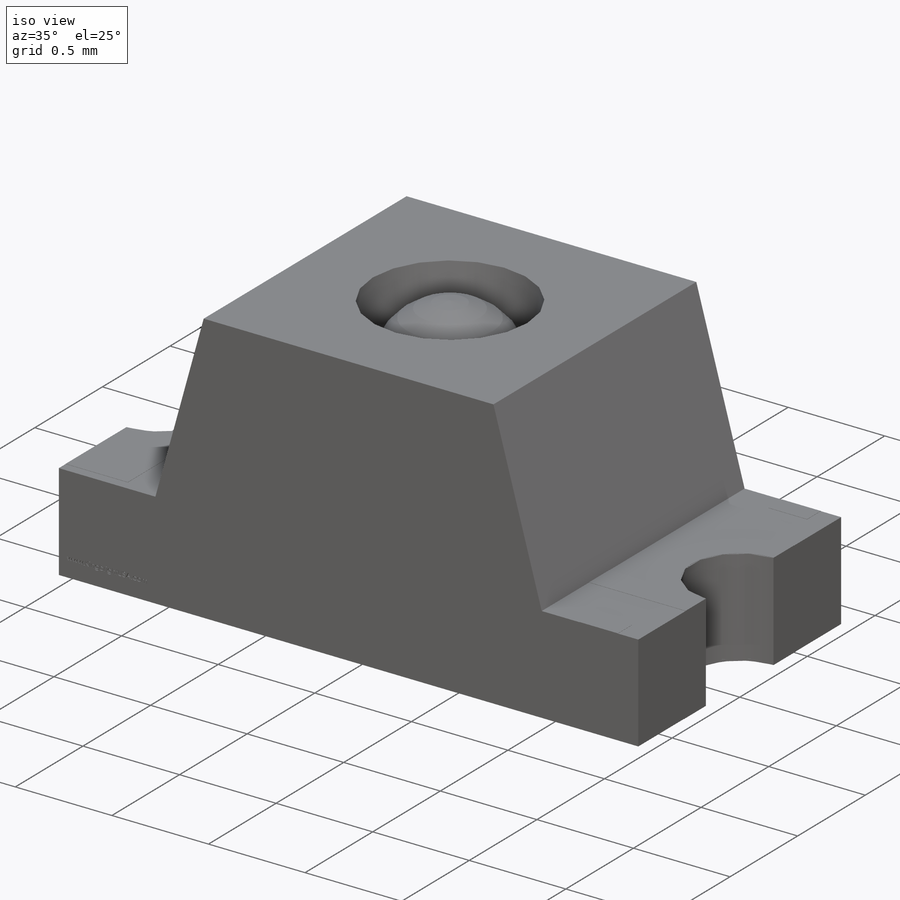
[diagram: iso view]
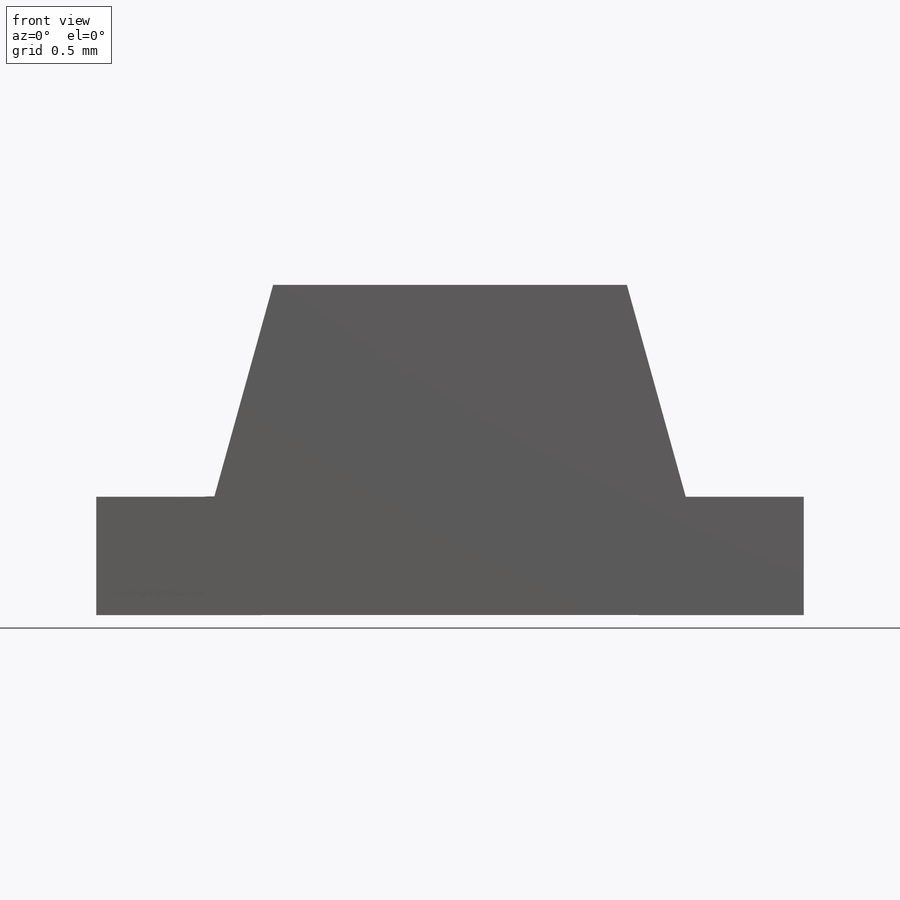
[diagram: front view]
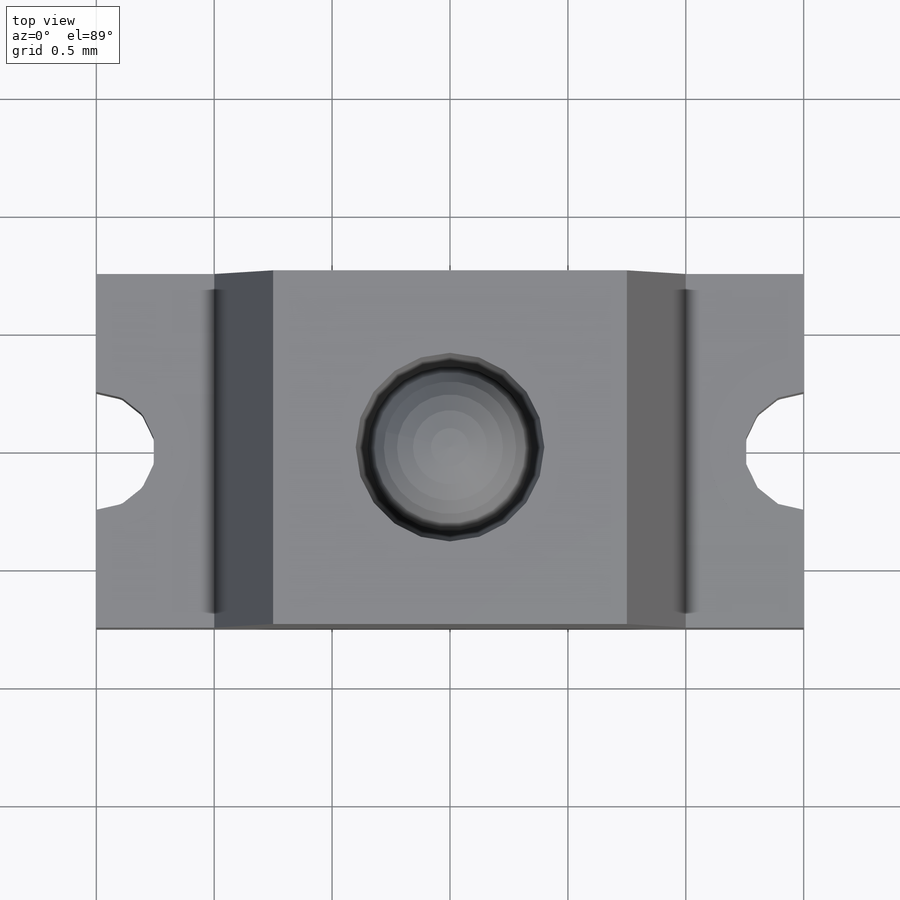
[diagram: top view]
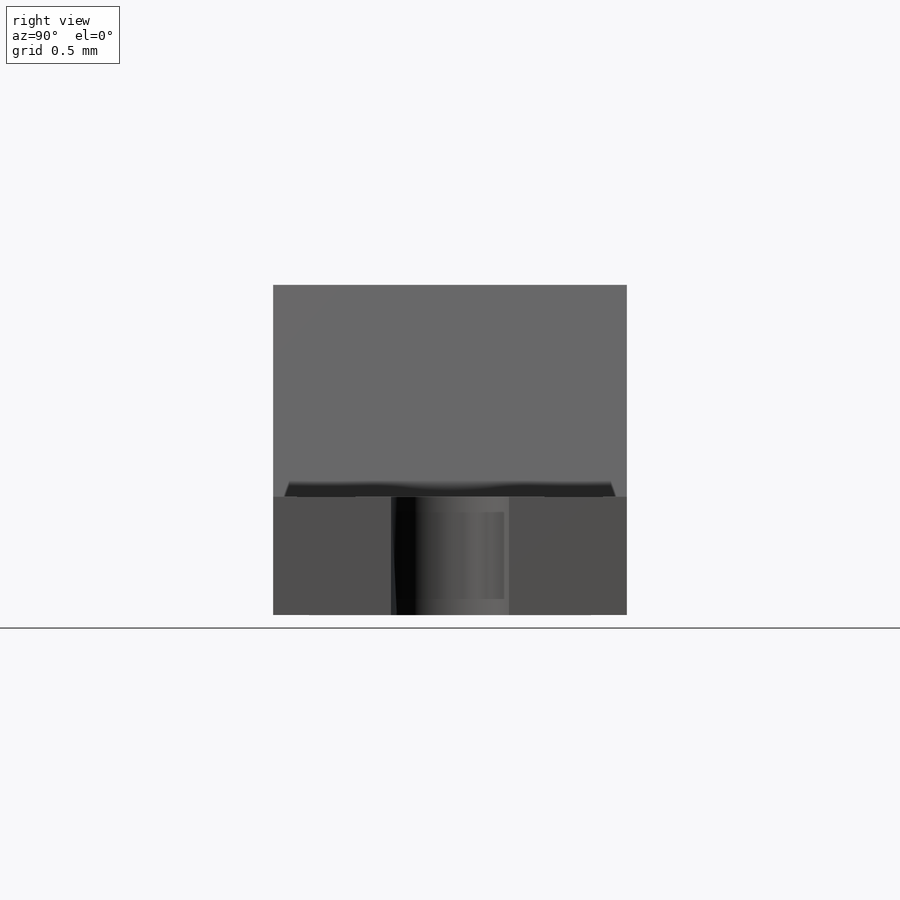
[diagram: right view]
SOLIDWORKS PART (.sldprt)
format: sldprt  version: not decoded by parser v0  size: 712,704 bytes
history: native  units: mm
features: sketch x9, extrude x5, cut_extrude x3, material x1, revolve x1 (+11 scaffold rows collapsed)
feature tree (30):
  scaffold x11  (default folders/planes/origin — collapsed)
  material  "Material <not specified>"
  sketch  "Sketch1"  dims[D6=0.35mm D1=0.5mm D2=3.0mm D3=1.5mm D4=2.0mm D5=1.4mm]
  extrude  "Extrude1"  Depth=1.5mm
  extrude  "Extrude2"  [1 undecoded]
  sketch  "Sketch1<3>"  dims[D1=1.5mm]
  sketch  "Sketch2"  dims[D1=0.8mm]
  cut_extrude  "Cut-Extrude1"  [1 undecoded]
  revolve  "Revolve1"  [1 undecoded]
  sketch  "Sketch1<4>"  dims[D1=360.0deg]
  sketch  "Sketch3"  dims[D1=0.5mm D2=1.6mm]
  cut_extrude  "Cut-Extrude2"  [1 undecoded]
  extrude  "Extrude4"  [1 undecoded]
  sketch  "Sketch3<3>"  dims[D1=0.01mm D2=0.001mm]
  sketch  "Sketch4"  dims[D1=0.15mm]
  extrude  "Extrude5"  Depth=0.01mm
  extrude  "Extrude6"  [1 undecoded]
  sketch  "Sketch4<3>"  dims[D1=0.01mm D2=0.001mm]
  sketch  "Sketch5"  dims[D1=0.08mm D2=0.5mm]
  cut_extrude  "Cut-Extrude3"  Depth=0.01mm
decode coverage: 12 of 18 modeling features carry decoded parameters
note: 6 parameter values undecoded
summary: no parameter record found for 6 features
note: suppression state not decoded; provenance and decode notes live in map.json
